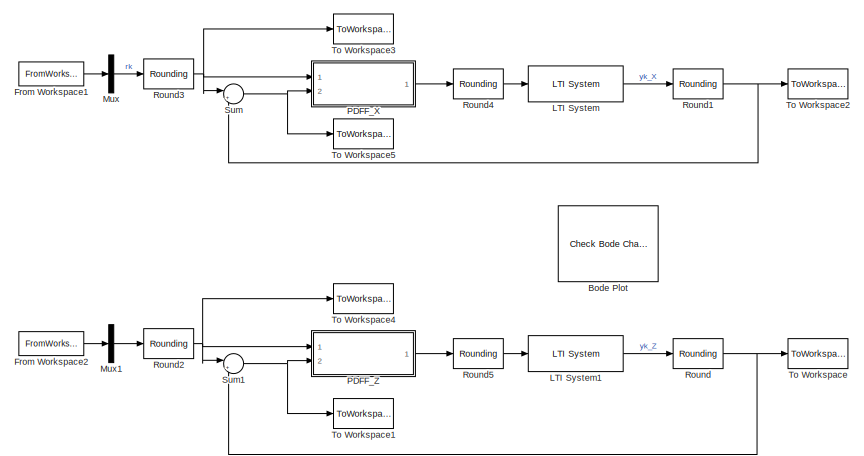
[diagram: root canvas - part 1/2, top right region]
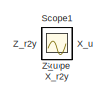
[diagram: root canvas - part 2/2, bottom left region]
MODEL slx_cd05cf9c40d7
KIND model
CONFIG AbsTol = auto
CONFIG EnableMultiTasking = off
CONFIG FixedStep = auto
CONFIG MaxStep = auto
CONFIG MinStep = auto
CONFIG RelTol = 1e-3
CONFIG SampleTimeConstraint = Unconstrained
CONFIG Solver = VariableStepAuto
CONFIG SolverName = VariableStepAuto
CONFIG StartTime = 0.0
CONFIG StopTime = Reference_time
BLOCK [Reference] Bode Plot  REF=slctrlblks/Model Verification/Check Bode 
Characteristics
  InstantiateOnLoad = on
  Ports = []
  SourceBlock = slctrlblks/Model Verification/Check Bode \nCharacteristics
  SourceProductBaseCode = SD
  SourceProductName = Simulink Control Design
  SourceType = Checks_Bode
BLOCK [FromWorkspace] From Workspace1
  SampleTime = Ts
  VariableName = inputdata_x
  ZeroCross = on
BLOCK [FromWorkspace] From Workspace2
  SampleTime = Ts
  VariableName = inputdata_z
  ZeroCross = on
BLOCK [Reference] LTI System  REF=cstblocks/LTI System
  Ports = [1, 1]
  SourceBlock = cstblocks/LTI System
  SourceProductBaseCode = CT
  SourceProductName = Control System Toolbox
  SourceType = LTI Block
BLOCK [Reference] LTI System1  REF=cstblocks/LTI System
  Ports = [1, 1]
  SourceBlock = cstblocks/LTI System
  SourceProductBaseCode = CT
  SourceProductName = Control System Toolbox
  SourceType = LTI Block
BLOCK [Mux] Mux
  DisplayOption = bar
  Inputs = 1
  Ports = [1, 1]
BLOCK [Mux] Mux1
  DisplayOption = bar
  Inputs = 1
  Ports = [1, 1]
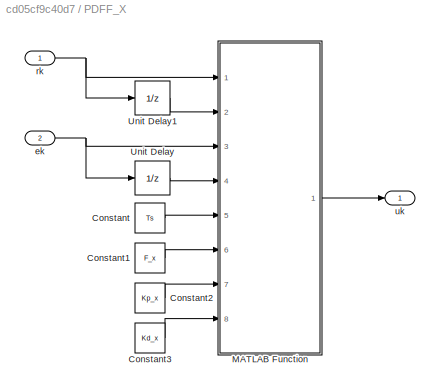
BLOCK [SubSystem] PDFF_X
  Ports = [2, 1]
  RequestExecContextInheritance = off
  Variant = off
BLOCK [Constant] PDFF_X/Constant
  Value = Ts
BLOCK [Constant] PDFF_X/Constant1
  Value = F_x
BLOCK [Constant] PDFF_X/Constant2
  Value = Kp_x
BLOCK [Constant] PDFF_X/Constant3
  Value = Kd_x
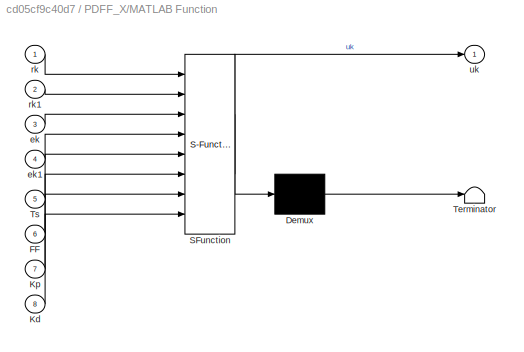
BLOCK [SubSystem] PDFF_X/MATLAB Function
  ErrorFcn = Stateflow.Translate.translate
  PermitHierarchicalResolution = ExplicitOnly
  Ports = [8, 1]
  RequestExecContextInheritance = off
  SFBlockType = MATLAB Function
  TreatAsAtomicUnit = on
  Variant = off
BLOCK [Demux] PDFF_X/MATLAB Function/ Demux 
  Outputs = 1
  Ports = [1, 1]
BLOCK [S-Function] PDFF_X/MATLAB Function/ SFunction 
  EnableBusSupport = on
  FunctionName = sf_sfun
  PortCounts = [8 2]
  Ports = [8, 2]
  SFcnIsStateOwnerBlock = off
  SFunctionDeploymentMode = off
  Tag = Stateflow S-Function ITRI_Block_PDFF_Ccode_XZ 1
BLOCK [Terminator] PDFF_X/MATLAB Function/ Terminator 
BLOCK [Inport] PDFF_X/MATLAB Function/FF
  IconDisplay = Port number
  Port = 6
BLOCK [Inport] PDFF_X/MATLAB Function/Kd
  IconDisplay = Port number
  Port = 8
BLOCK [Inport] PDFF_X/MATLAB Function/Kp
  IconDisplay = Port number
  Port = 7
BLOCK [Inport] PDFF_X/MATLAB Function/Ts
  IconDisplay = Port number
  Port = 5
BLOCK [Inport] PDFF_X/MATLAB Function/ek
  IconDisplay = Port number
  Port = 3
BLOCK [Inport] PDFF_X/MATLAB Function/ek1
  IconDisplay = Port number
  Port = 4
BLOCK [Inport] PDFF_X/MATLAB Function/rk
  IconDisplay = Port number
BLOCK [Inport] PDFF_X/MATLAB Function/rk1
  IconDisplay = Port number
  Port = 2
BLOCK [Outport] PDFF_X/MATLAB Function/uk
  IconDisplay = Port number
BLOCK [UnitDelay] PDFF_X/Unit Delay
  InputProcessing = Elements as channels (sample based)
  SampleTime = -1
BLOCK [UnitDelay] PDFF_X/Unit Delay1
  InputProcessing = Elements as channels (sample based)
  SampleTime = -1
BLOCK [Inport] PDFF_X/ek
  IconDisplay = Port number
  Port = 2
BLOCK [Inport] PDFF_X/rk
  IconDisplay = Port number
BLOCK [Outport] PDFF_X/uk
  IconDisplay = Port number
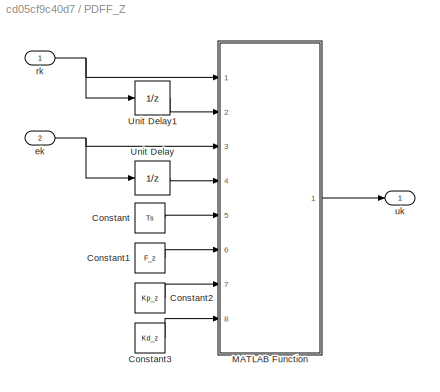
BLOCK [SubSystem] PDFF_Z
  Ports = [2, 1]
  RequestExecContextInheritance = off
  Variant = off
BLOCK [Constant] PDFF_Z/Constant
  Value = Ts
BLOCK [Constant] PDFF_Z/Constant1
  Value = F_z
BLOCK [Constant] PDFF_Z/Constant2
  Value = Kp_z
BLOCK [Constant] PDFF_Z/Constant3
  Value = Kd_z
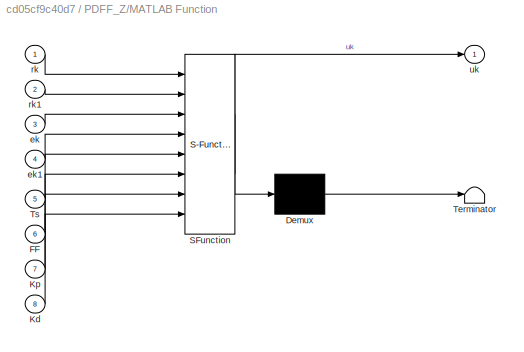
BLOCK [SubSystem] PDFF_Z/MATLAB Function
  ErrorFcn = Stateflow.Translate.translate
  PermitHierarchicalResolution = ExplicitOnly
  Ports = [8, 1]
  RequestExecContextInheritance = off
  SFBlockType = MATLAB Function
  TreatAsAtomicUnit = on
  Variant = off
BLOCK [Demux] PDFF_Z/MATLAB Function/ Demux 
  Outputs = 1
  Ports = [1, 1]
BLOCK [S-Function] PDFF_Z/MATLAB Function/ SFunction 
  EnableBusSupport = on
  FunctionName = sf_sfun
  PortCounts = [8 2]
  Ports = [8, 2]
  SFcnIsStateOwnerBlock = off
  SFunctionDeploymentMode = off
  Tag = Stateflow S-Function ITRI_Block_PDFF_Ccode_XZ 2
BLOCK [Terminator] PDFF_Z/MATLAB Function/ Terminator 
BLOCK [Inport] PDFF_Z/MATLAB Function/FF
  IconDisplay = Port number
  Port = 6
BLOCK [Inport] PDFF_Z/MATLAB Function/Kd
  IconDisplay = Port number
  Port = 8
BLOCK [Inport] PDFF_Z/MATLAB Function/Kp
  IconDisplay = Port number
  Port = 7
BLOCK [Inport] PDFF_Z/MATLAB Function/Ts
  IconDisplay = Port number
  Port = 5
BLOCK [Inport] PDFF_Z/MATLAB Function/ek
  IconDisplay = Port number
  Port = 3
BLOCK [Inport] PDFF_Z/MATLAB Function/ek1
  IconDisplay = Port number
  Port = 4
BLOCK [Inport] PDFF_Z/MATLAB Function/rk
  IconDisplay = Port number
BLOCK [Inport] PDFF_Z/MATLAB Function/rk1
  IconDisplay = Port number
  Port = 2
BLOCK [Outport] PDFF_Z/MATLAB Function/uk
  IconDisplay = Port number
BLOCK [UnitDelay] PDFF_Z/Unit Delay
  InputProcessing = Elements as channels (sample based)
  SampleTime = -1
BLOCK [UnitDelay] PDFF_Z/Unit Delay1
  InputProcessing = Elements as channels (sample based)
  SampleTime = -1
BLOCK [Inport] PDFF_Z/ek
  IconDisplay = Port number
  Port = 2
BLOCK [Inport] PDFF_Z/rk
  IconDisplay = Port number
BLOCK [Outport] PDFF_Z/uk
  IconDisplay = Port number
BLOCK [Rounding] Round
  Operator = round
BLOCK [Rounding] Round1
  Operator = round
BLOCK [Rounding] Round2
  Operator = round
BLOCK [Rounding] Round3
  Operator = round
BLOCK [Rounding] Round4
  Operator = round
BLOCK [Rounding] Round5
  Operator = round
BLOCK [Scope] Scope
  IOType = viewer
  NumInputPorts = 1
  Ports = []
  ScopeSpecificationString = Simulink.scopes.TimeScopeBlockCfg('CurrentConfiguration', extmgr.ConfigurationSet(extmgr.Configuration('Core','General UI',true),extmgr.Configuration('Core','Source UI',true),extmgr.Configuration('Sources','WiredSimulink',true,'DataLoggingVariableName','ScopeData1'),extmgr.Configuration('Visuals','Time Domain',true,'SerializedDisplays',{struct('MinYLimReal','-2946.00000','MaxYLimReal','2554.00000'...<+1381ch>
BLOCK [Scope] Scope1
  IOType = viewer
  NumInputPorts = 1
  Ports = []
  ScopeSpecificationString = Simulink.scopes.TimeScopeBlockCfg('CurrentConfiguration', extmgr.ConfigurationSet(extmgr.Configuration('Core','General UI',true),extmgr.Configuration('Core','Source UI',true),extmgr.Configuration('Sources','WiredSimulink',true,'DataLoggingVariableName','ScopeData2'),extmgr.Configuration('Visuals','Time Domain',true,'SerializedDisplays',{struct('MinYLimReal','-2962.375','MaxYLimReal','2391.375','YL...<+1369ch>
BLOCK [Sum] Sum
  IconShape = round
  InputSameDT = off
  Inputs = |+-
  OutDataTypeStr = Inherit: Inherit via internal rule
  Ports = [2, 1]
  SaturateOnIntegerOverflow = off
BLOCK [Sum] Sum1
  IconShape = round
  InputSameDT = off
  Inputs = |+-
  OutDataTypeStr = Inherit: Inherit via internal rule
  Ports = [2, 1]
  SaturateOnIntegerOverflow = off
BLOCK [ToWorkspace] To Workspace
  FixptAsFi = on
  MaxDataPoints = inf
  Ports = [1]
  SampleTime = -1
  VariableName = yk_Z
BLOCK [ToWorkspace] To Workspace1
  FixptAsFi = on
  MaxDataPoints = inf
  Ports = [1]
  SampleTime = -1
  VariableName = ek_Z
BLOCK [ToWorkspace] To Workspace2
  FixptAsFi = on
  MaxDataPoints = inf
  Ports = [1]
  SampleTime = -1
  VariableName = yk_X
BLOCK [ToWorkspace] To Workspace3
  FixptAsFi = on
  MaxDataPoints = inf
  Ports = [1]
  SampleTime = -1
  Save2DSignal = 3-D array (concatenate along third dimension)
  VariableName = rk_X
BLOCK [ToWorkspace] To Workspace4
  FixptAsFi = on
  MaxDataPoints = inf
  Ports = [1]
  SampleTime = -1
  Save2DSignal = 3-D array (concatenate along third dimension)
  VariableName = rk_Z
BLOCK [ToWorkspace] To Workspace5
  FixptAsFi = on
  MaxDataPoints = inf
  Ports = [1]
  SampleTime = -1
  VariableName = ek_X
BLOCK [Scope] X_r2y
  IOType = viewer
  NumInputPorts = 1
  Ports = []
  ScopeSpecificationString = Simulink.scopes.TimeScopeBlockCfg('CurrentConfiguration', extmgr.ConfigurationSet(extmgr.Configuration('Core','General UI',true,'FigureColor',[1 1 1]),extmgr.Configuration('Core','Source UI',true),extmgr.Configuration('Sources','WiredSimulink',true,'DataLoggingVariableName','ScopeData1'),extmgr.Configuration('Visuals','Time Domain',true,'SerializedDisplays',{struct('MinYLimReal','-4194302.375','Ma...<+1879ch>
BLOCK [Scope] X_u
  IOType = viewer
  NumInputPorts = 1
  Ports = []
  ScopeSpecificationString = Simulink.scopes.TimeScopeBlockCfg('CurrentConfiguration', extmgr.ConfigurationSet(extmgr.Configuration('Core','General UI',true),extmgr.Configuration('Core','Source UI',true),extmgr.Configuration('Sources','WiredSimulink',true,'DataLoggingVariableName','ScopeData1'),extmgr.Configuration('Visuals','Time Domain',true,'SerializedDisplays',{struct('MinYLimReal','-43830176.124','MaxYLimReal','43830176....<+1467ch>
BLOCK [Scope] Z_r2y
  IOType = viewer
  NumInputPorts = 1
  Ports = []
  ScopeSpecificationString = Simulink.scopes.TimeScopeBlockCfg('CurrentConfiguration', extmgr.ConfigurationSet(extmgr.Configuration('Core','General UI',true),extmgr.Configuration('Core','Source UI',true),extmgr.Configuration('Sources','WiredSimulink',true,'DataLoggingVariableName','ScopeData3'),extmgr.Configuration('Visuals','Time Domain',true,'SerializedDisplays',{struct('MinYLimReal','-78645568.76963','MaxYLimReal','8740501...<+1411ch>
BLOCK [Scope] Z_u
  IOType = viewer
  NumInputPorts = 1
  Ports = []
  ScopeSpecificationString = Simulink.scopes.TimeScopeBlockCfg('CurrentConfiguration', extmgr.ConfigurationSet(extmgr.Configuration('Core','General UI',true),extmgr.Configuration('Core','Source UI',true),extmgr.Configuration('Sources','WiredSimulink',true,'DataLoggingVariableName','ScopeData2'),extmgr.Configuration('Visuals','Time Domain',true,'SerializedDisplays',{struct('MinYLimReal','-36548475.12664','MaxYLimReal','3654858...<+1519ch>
LINE From Workspace1:1 -> Mux:1
LINE From Workspace2:1 -> Mux1:1
LINE LTI System1:1 -> Round:1
LINE LTI System:1 -> Round1:1
LINE Mux1:1 -> Round2:1
LINE Mux:1 -> Round3:1
LINE PDFF_X/Constant1:1 -> PDFF_X/MATLAB Function:6
LINE PDFF_X/Constant2:1 -> PDFF_X/MATLAB Function:7
LINE PDFF_X/Constant3:1 -> PDFF_X/MATLAB Function:8
LINE PDFF_X/Constant:1 -> PDFF_X/MATLAB Function:5
LINE PDFF_X/MATLAB Function:1 -> PDFF_X/uk:1
LINE PDFF_X/Unit Delay1:1 -> PDFF_X/MATLAB Function:2
LINE PDFF_X/Unit Delay:1 -> PDFF_X/MATLAB Function:4
NET PDFF_X/ek:1 -> PDFF_X/MATLAB Function:3, PDFF_X/Unit Delay:1
NET PDFF_X/rk:1 -> PDFF_X/MATLAB Function:1, PDFF_X/Unit Delay1:1
LINE PDFF_X:1 -> Round4:1
LINE PDFF_Z/Constant1:1 -> PDFF_Z/MATLAB Function:6
LINE PDFF_Z/Constant2:1 -> PDFF_Z/MATLAB Function:7
LINE PDFF_Z/Constant3:1 -> PDFF_Z/MATLAB Function:8
LINE PDFF_Z/Constant:1 -> PDFF_Z/MATLAB Function:5
LINE PDFF_Z/MATLAB Function:1 -> PDFF_Z/uk:1
LINE PDFF_Z/Unit Delay1:1 -> PDFF_Z/MATLAB Function:2
LINE PDFF_Z/Unit Delay:1 -> PDFF_Z/MATLAB Function:4
NET PDFF_Z/ek:1 -> PDFF_Z/MATLAB Function:3, PDFF_Z/Unit Delay:1
NET PDFF_Z/rk:1 -> PDFF_Z/MATLAB Function:1, PDFF_Z/Unit Delay1:1
LINE PDFF_Z:1 -> Round5:1
NET Round1:1 -> Sum:2, To Workspace2:1
NET Round2:1 -> PDFF_Z:1, Sum1:1, To Workspace4:1
NET Round3:1 -> PDFF_X:1, Sum:1, To Workspace3:1
LINE Round4:1 -> LTI System:1
LINE Round5:1 -> LTI System1:1
NET Round:1 -> Sum1:2, To Workspace:1
NET Sum1:1 -> PDFF_Z:2, To Workspace1:1
NET Sum:1 -> PDFF_X:2, To Workspace5:1
note: NET lines group one-source signal fan-out (src -> all destinations, sorted); 1:1 wires keep LINE
CHART PDFF_X/MATLAB Function states=1 transitions=1
  STATE_LABEL 'eML_blk_kernel()'
  STATE_LABEL 'SCRIPT:\nfunction uk = PDFF_x(rk,rk1,ek,ek1,Ts,FF,Kp,Kd)    \n    uk = FF*(rk-rk1)/Ts + Kp*ek + Kd*(ek-ek1)/Ts;\nend\n'
CHART PDFF_Z/MATLAB Function states=1 transitions=1
  STATE_LABEL 'eML_blk_kernel()'
  STATE_LABEL 'SCRIPT:\nfunction uk = PDFF_z(rk,rk1,ek,ek1,Ts,FF,Kp,Kd)    \n    uk = FF*(rk-rk1)/Ts + Kp*ek + Kd*(ek-ek1)/Ts;\nend\n'
